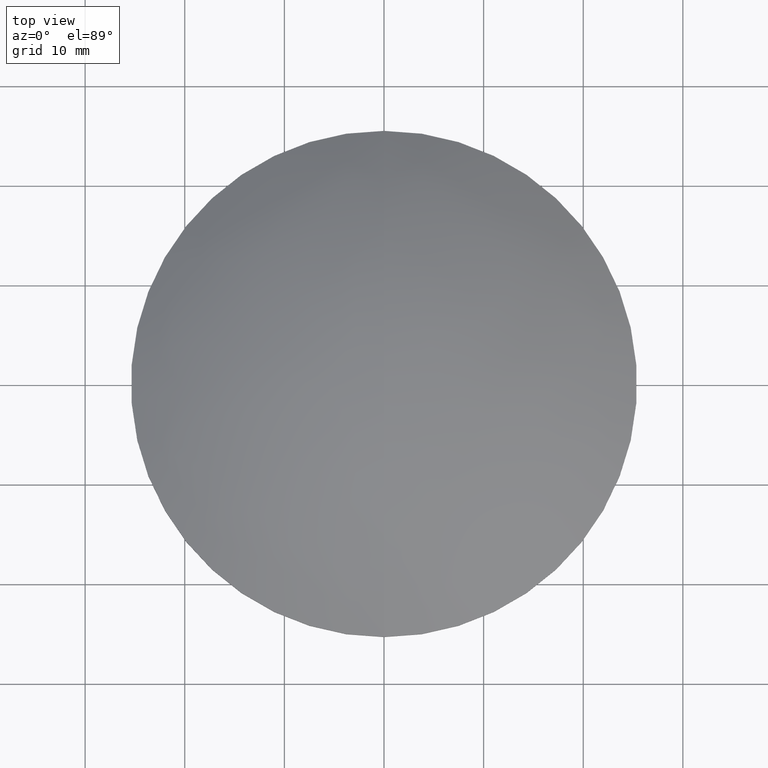
[diagram: clean part render]
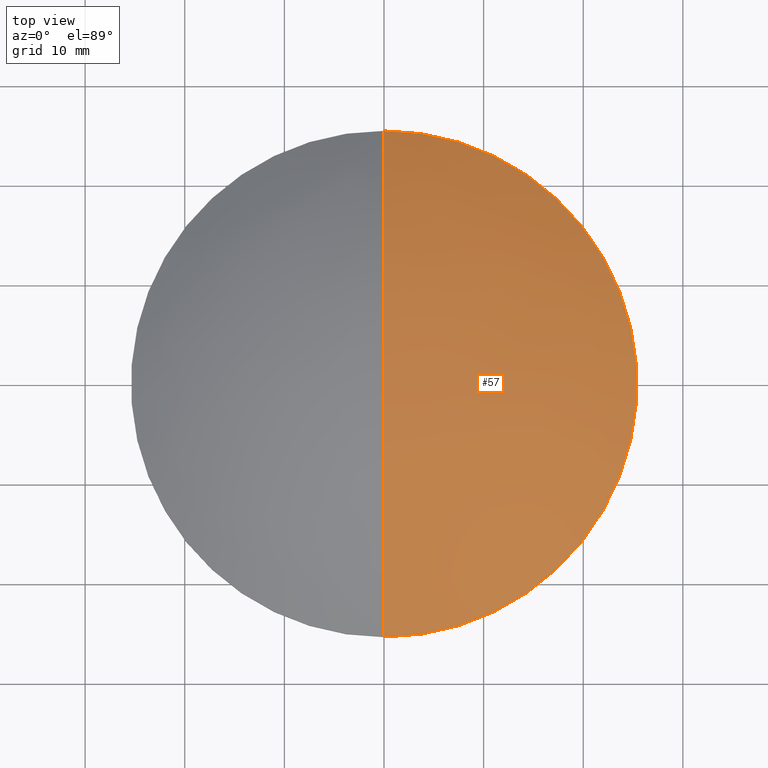
[diagram: same view with one face highlighted and labeled with its STEP entity id]
A machine part, top view. The second image highlights one B-rep face of the part: STEP entity #57.
In plain terms, the highlighted face is a freeform B-spline surface patch.
Its self-contained STEP definition (entity closure, byte-faithful):
#17 = CARTESIAN_POINT ( 'NONE',  ( 2.081668171172168500E-014, -9.493655584627669300, 18.28236261593198400 ) ) ;
#19 = CARTESIAN_POINT ( 'NONE',  ( 2.081668171172168500E-014, 25.67355596179357800, 8.346125439660790200 ) ) ;
#21 = CARTESIAN_POINT ( 'NONE',  ( 7.748170942791487500, 25.67355596179357800, 8.346125439660784900 ) ) ;
#22 =( BOUNDED_SURFACE ( )  B_SPLINE_SURFACE ( 3, 3, ( 
 ( #235, #118, #249, #59 ),
 ( #171, #219, #96, #17 ),
 ( #197, #136, #23, #222 ),
 ( #25, #238, #21, #19 ) ),
 .UNSPECIFIED., .F., .F., .T. ) 
 B_SPLINE_SURFACE_WITH_KNOTS ( ( 4, 4 ),
 ( 4, 4 ),
 ( 0.0000000000000000000, 1.000000000000000000 ),
 ( 0.0000000000000000000, 1.000000000000000000 ),
 .UNSPECIFIED. ) 
 GEOMETRIC_REPRESENTATION_ITEM ( )  RATIONAL_B_SPLINE_SURFACE ( (
 ( 1.000000000000000000, 0.9750407155908767900, 0.9750407155908767900, 1.000000000000000000),
 ( 0.9014285288715965200, 0.8789295178449928500, 0.8789295178449928500, 0.9014285288715965200),
 ( 0.9014285288715965200, 0.8789295178449928500, 0.8789295178449928500, 0.9014285288715965200),
 ( 1.000000000000000000, 0.9750407155908767900, 0.9750407155908767900, 1.000000000000000000) ) ) 
 REPRESENTATION_ITEM ( '' )  SURFACE ( )  );
#23 = CARTESIAN_POINT ( 'NONE',  ( 9.589711228101732500, 9.493655584627648000, 18.28236261593198700 ) ) ;
#25 = CARTESIAN_POINT ( 'NONE',  ( 21.81581761930887400, 25.67355596179357500, 2.202616643730809000 ) ) ;
#28 = DIRECTION ( 'NONE',  ( 1.797079892071900000E-031, 9.344115438189380100E-016, -1.000000000000000000 ) ) ;
#32 = CARTESIAN_POINT ( 'NONE',  ( 9.992007221626410800E-016, 3.552713678800502500E-015, 8.512891251377960000 ) ) ;
#38 = CARTESIAN_POINT ( 'NONE',  ( -3.552713678800500100E-015, -7.105427357601000300E-015, -33.46000000000000100 ) ) ;
#49 = EDGE_CURVE ( 'NONE', #107, #131, #146, .T. ) ;
#56 = ORIENTED_EDGE ( 'NONE', *, *, #75, .F. ) ;
#57 = ADVANCED_FACE ( 'NONE', ( #80 ), #22, .T. ) ;
#59 = CARTESIAN_POINT ( 'NONE',  ( 2.081668171172168500E-014, -25.67355596179359600, 8.346125439660788500 ) ) ;
#75 = EDGE_CURVE ( 'NONE', #131, #107, #101, .T. ) ;
#80 = FACE_OUTER_BOUND ( 'NONE', #132, .T. ) ;
#95 = DIRECTION ( 'NONE',  ( 0.0000000000000000000, -1.000000000000000000, 2.828737832819905300E-016 ) ) ;
#96 = CARTESIAN_POINT ( 'NONE',  ( 9.589711228101728900, -9.493655584627671100, 18.28236261593197300 ) ) ;
#97 = CARTESIAN_POINT ( 'NONE',  ( 9.992007221626410800E-016, -25.39999999999999500, 8.512891251377935100 ) ) ;
#101 = CIRCLE ( 'NONE', #137, 25.39999999999999900 ) ;
#107 = VERTEX_POINT ( 'NONE', #97 ) ;
#118 = CARTESIAN_POINT ( 'NONE',  ( 15.20625868226549200, -25.67355596179360000, 6.245868258021964400 ) ) ;
#119 = AXIS2_PLACEMENT_3D ( 'NONE', #38, #173, #95 ) ;
#131 = VERTEX_POINT ( 'NONE', #255 ) ;
#132 = EDGE_LOOP ( 'NONE', ( #243, #56 ) ) ;
#136 = CARTESIAN_POINT ( 'NONE',  ( 18.82039396128811500, 9.493655584627648000, 15.68292850104565500 ) ) ;
#137 = AXIS2_PLACEMENT_3D ( 'NONE', #32, #28, #160 ) ;
#146 = CIRCLE ( 'NONE', #119, 49.06000000000000900 ) ;
#160 = DIRECTION ( 'NONE',  ( 0.0000000000000000000, -1.000000000000000000, -9.561467977824922300E-016 ) ) ;
#171 = CARTESIAN_POINT ( 'NONE',  ( 27.00087449267521900, -9.493655584627671100, 10.67870031740169500 ) ) ;
#173 = DIRECTION ( 'NONE',  ( -1.000000000000000000, 8.864262300989019900E-032, 2.993131588200479900E-016 ) ) ;
#197 = CARTESIAN_POINT ( 'NONE',  ( 27.00087449267522300, 9.493655584627649800, 10.67870031740169500 ) ) ;
#219 = CARTESIAN_POINT ( 'NONE',  ( 18.82039396128811100, -9.493655584627671100, 15.68292850104566000 ) ) ;
#222 = CARTESIAN_POINT ( 'NONE',  ( 2.428612866367529600E-014, 9.493655584627651600, 18.28236261593198400 ) ) ;
#235 = CARTESIAN_POINT ( 'NONE',  ( 21.81581761930886600, -25.67355596179360000, 2.202616643730809000 ) ) ;
#238 = CARTESIAN_POINT ( 'NONE',  ( 15.20625868226549700, 25.67355596179357100, 6.245868258021966200 ) ) ;
#243 = ORIENTED_EDGE ( 'NONE', *, *, #49, .F. ) ;
#249 = CARTESIAN_POINT ( 'NONE',  ( 7.748170942791485800, -25.67355596179359600, 8.346125439660783100 ) ) ;
#255 = CARTESIAN_POINT ( 'NONE',  ( 4.109803591996917800E-015, 25.40000000000000200, 8.512891251377984900 ) ) ;